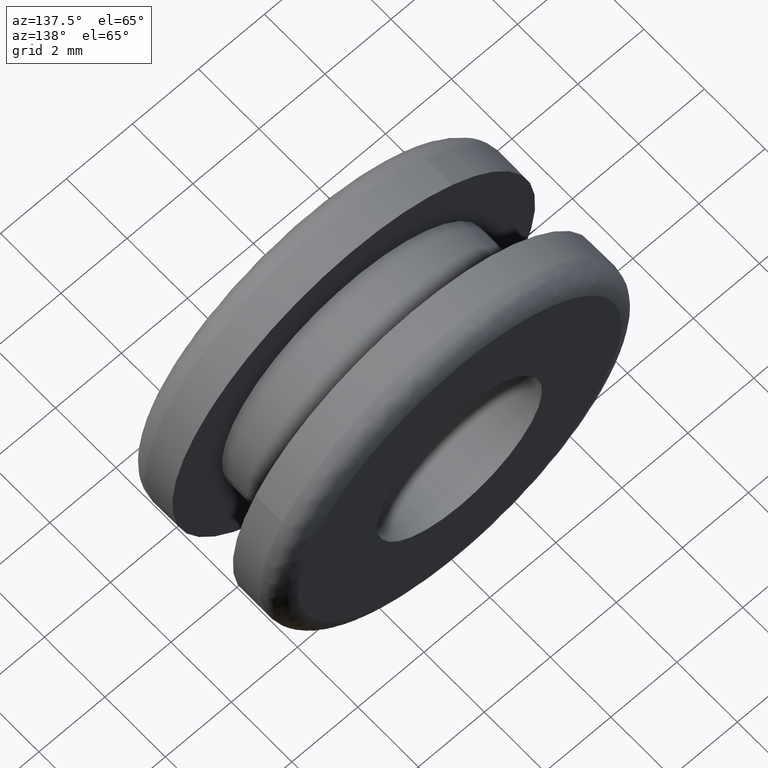
[diagram: clean part render]
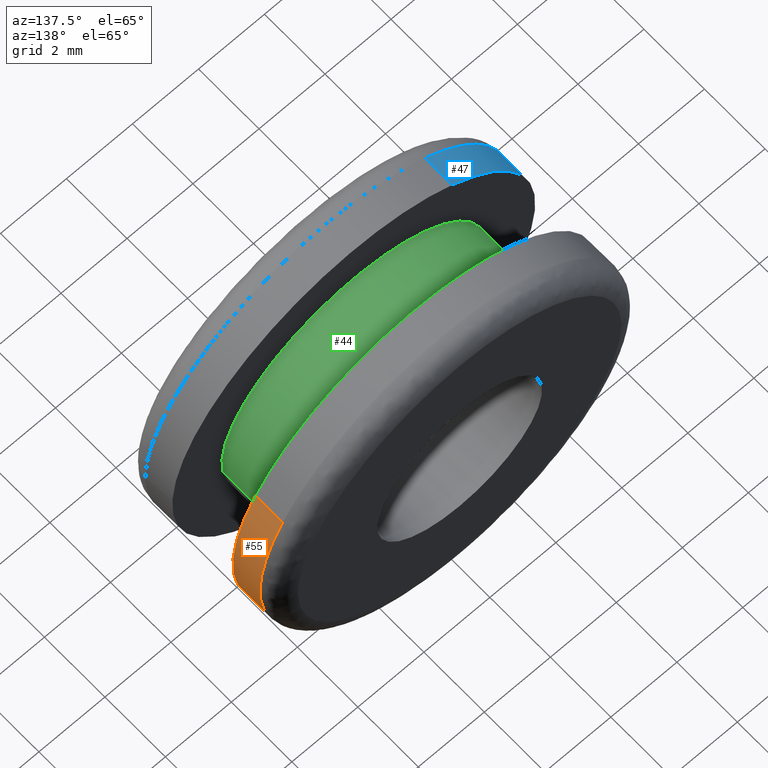
[diagram: same view with three faces highlighted in distinct colors, each labeled with its STEP entity id]
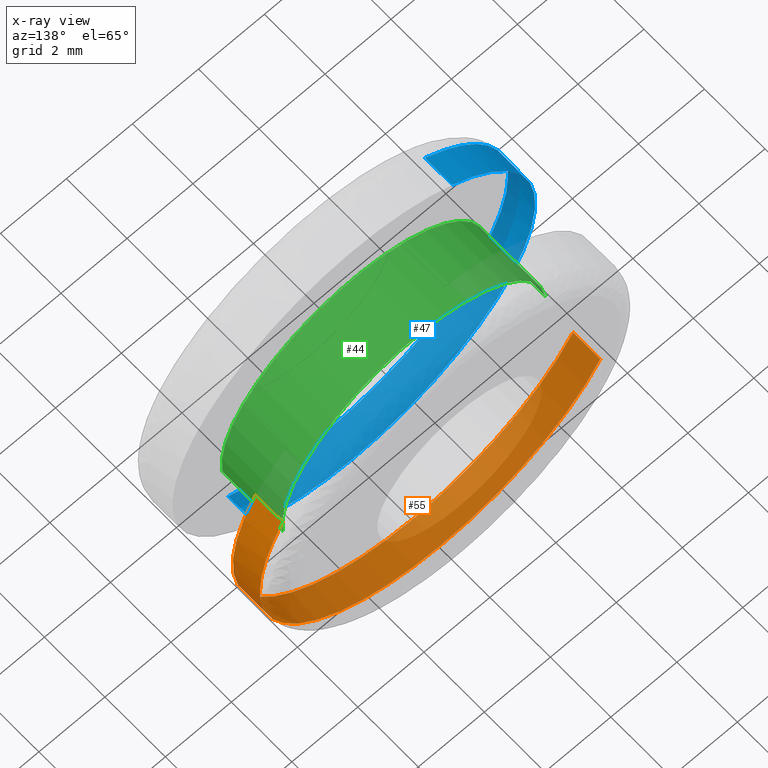
[diagram: x-ray of the same camera — body ghosted, the three highlighted faces saturated]
A machine part, auxiliary view with three faces highlighted in distinct colors.
The next image is the same camera in x-ray (body ghosted, the three faces saturated) — at least one of them is partly hidden behind the body in this view.
Their STEP definitions:

[orange] entity #55 — the highlighted cylindrical surface (partial cylindrical patch) has radius 5.5 mm, axis along (0, 1, -0).
#55=ADVANCED_FACE('',(#211),#210,.T.);
#210=CYLINDRICAL_SURFACE('',#386,5.50000000000E+000);
#211=FACE_OUTER_BOUND('',#387,.T.);
#383=CARTESIAN_POINT('',(2.34197548228E-016,4.42250000003E+000,-1.96302473806E-015));
#384=DIRECTION('',(4.95361328777E-016,1.00000000000E+000,-3.94829318327E-016));
#385=DIRECTION('',(-8.74946427443E-001,2.42230478100E-016,-4.84219732254E-001));
#386=AXIS2_PLACEMENT_3D('',#383,#384,#385);
#387=EDGE_LOOP('',(#482,#483,#484,#485,#486,#487,#488,#489));
#482=ORIENTED_EDGE('',*,*,#496,.F.);
#483=ORIENTED_EDGE('',*,*,#498,.F.);
#484=ORIENTED_EDGE('',*,*,#539,.T.);
#485=ORIENTED_EDGE('',*,*,#528,.T.);
#486=ORIENTED_EDGE('',*,*,#527,.T.);
#487=ORIENTED_EDGE('',*,*,#526,.T.);
#488=ORIENTED_EDGE('',*,*,#534,.T.);
#489=ORIENTED_EDGE('',*,*,#540,.F.);
#496=EDGE_CURVE('',#583,#584,#585,.T.);
#498=EDGE_CURVE('',#591,#583,#598,.T.);
#526=EDGE_CURVE('',#789,#790,#791,.T.);
#527=EDGE_CURVE('',#797,#789,#798,.T.);
#528=EDGE_CURVE('',#804,#797,#805,.T.);
#534=EDGE_CURVE('',#790,#837,#844,.T.);
#539=EDGE_CURVE('',#591,#804,#874,.T.);
#540=EDGE_CURVE('',#584,#837,#880,.T.);
#583=VERTEX_POINT('',#916);
#584=VERTEX_POINT('',#917);
#585=CIRCLE('',#921,5.50000036439E+000);
#591=VERTEX_POINT('',#922);
#598=CIRCLE('',#930,5.50000036439E+000);
#789=VERTEX_POINT('',#1054);
#790=VERTEX_POINT('',#1055);
#791=CIRCLE('',#1059,5.50000000000E+000);
#797=VERTEX_POINT('',#1060);
#798=CIRCLE('',#1064,5.50000000000E+000);
#804=VERTEX_POINT('',#1065);
#805=CIRCLE('',#1069,5.50000000000E+000);
#837=VERTEX_POINT('',#1087);
#844=CIRCLE('',#1095,5.50000000000E+000);
#874=(BOUNDED_CURVE() B_SPLINE_CURVE(1,(#1110,#1111),.UNSPECIFIED.,.F.,.F.) B_SPLINE_CURVE_WITH_KNOTS((2,2),(8.33332935974E-002,9.16666633252E-001),.UNSPECIFIED.) CURVE() GEOMETRIC_REPRESENTATION_ITEM() RATIONAL_B_SPLINE_CURVE((1.00000000000E+000,1.00000000000E+000)) REPRESENTATION_ITEM('') );
#880=(BOUNDED_CURVE() B_SPLINE_CURVE(1,(#1112,#1113),.UNSPECIFIED.,.F.,.F.) B_SPLINE_CURVE_WITH_KNOTS((2,2),(8.33333333333E-002,9.16666666243E-001),.UNSPECIFIED.) CURVE() GEOMETRIC_REPRESENTATION_ITEM() RATIONAL_B_SPLINE_CURVE((7.50000000000E-001,7.50000000000E-001)) REPRESENTATION_ITEM('') );
#916=CARTESIAN_POINT('',(-1.83399222221E-014,3.50000000000E+000,-5.50000072878E+000));
#917=CARTESIAN_POINT('',(4.81204951823E+000,3.50000000000E+000,2.66349072930E+000));
#918=CARTESIAN_POINT('',(1.41703984102E-007,3.50000000000E+000,-3.64391183005E-007));
#919=DIRECTION('',(5.70942712249E-017,-1.00000000000E+000,-5.65204409983E-016));
#920=DIRECTION('',(-2.57643618069E-008,5.65204408512E-016,-1.00000000000E+000));
#921=AXIS2_PLACEMENT_3D('',#918,#919,#920);
#922=CARTESIAN_POINT('',(-4.81220174616E+000,3.50000000000E+000,-2.66321590181E+000));
#927=CARTESIAN_POINT('',(1.41703984102E-007,3.50000000000E+000,-3.64391183005E-007));
#928=DIRECTION('',(5.70942712249E-017,-1.00000000000E+000,-5.65204409983E-016));
#929=DIRECTION('',(-2.57643618069E-008,5.65204408512E-016,-1.00000000000E+000));
#930=AXIS2_PLACEMENT_3D('',#927,#928,#929);
#1054=CARTESIAN_POINT('',(5.48661120612E+000,4.40000000003E+000,-3.83532883667E-001));
#1055=CARTESIAN_POINT('',(5.50000000000E+000,4.39999999997E+000,1.11497917188E-006));
#1056=CARTESIAN_POINT('',(7.63833440942E-013,4.40000000035E+000,-6.66133814775E-016));
#1057=DIRECTION('',(-6.81070261550E-011,-1.00000000000E+000,-1.38804812342E-010));
#1058=DIRECTION('',(-9.97565673840E-001,5.82619205406E-011,6.97332515759E-002));
#1059=AXIS2_PLACEMENT_3D('',#1056,#1057,#1058);
#1060=CARTESIAN_POINT('',(0.00000000000E+000,4.40000000000E+000,-5.50000000000E+000));
#1061=CARTESIAN_POINT('',(-1.21236354289E-012,4.40000000003E+000,1.29984911723E-012));
#1062=DIRECTION('',(1.14188542450E-016,-1.00000000000E+000,5.37412538713E-012));
#1063=DIRECTION('',(-2.20429735071E-013,5.37412538713E-012,1.00000000000E+000));
#1064=AXIS2_PLACEMENT_3D('',#1061,#1062,#1063);
#1065=CARTESIAN_POINT('',(-4.81220534752E+000,4.39999999786E+000,-2.66320853357E+000));
#1066=CARTESIAN_POINT('',(-5.77315972805E-015,4.40000000005E+000,-7.54951656745E-015));
#1067=DIRECTION('',(1.34141591574E-011,-1.00000000000E+000,7.95582968782E-010));
#1068=DIRECTION('',(9.99921044204E-001,3.41577271518E-012,-1.25660398839E-002));
#1069=AXIS2_PLACEMENT_3D('',#1066,#1067,#1068);
#1087=CARTESIAN_POINT('',(4.81220584344E+000,4.40000000000E+000,2.66320763749E+000));
#1092=CARTESIAN_POINT('',(7.63833440942E-013,4.40000000035E+000,-6.66133814775E-016));
#1093=DIRECTION('',(-6.81070261550E-011,-1.00000000000E+000,-1.38804812342E-010));
#1094=DIRECTION('',(-9.97565673840E-001,5.82619205406E-011,6.97332515759E-002));
#1095=AXIS2_PLACEMENT_3D('',#1092,#1093,#1094);
#1110=CARTESIAN_POINT('',(-4.81220535094E+000,3.49999995709E+000,-2.66320852740E+000));
#1111=CARTESIAN_POINT('',(-4.81220535094E+000,4.39999996394E+000,-2.66320852740E+000));
#1112=CARTESIAN_POINT('',(4.81220535094E+000,3.50000000000E+000,2.66320852740E+000));
#1113=CARTESIAN_POINT('',(4.81220535094E+000,4.39999999957E+000,2.66320852740E+000));

[blue] entity #47 — the highlighted cylindrical surface (partial cylindrical patch) has radius 5.5 mm, axis along (-0, 1, 0).
#47=ADVANCED_FACE('',(#131),#130,.T.);
#130=CYLINDRICAL_SURFACE('',#262,5.50000000000E+000);
#131=FACE_OUTER_BOUND('',#263,.T.);
#259=CARTESIAN_POINT('',(-1.70478042093E-016,1.52250000000E+000,1.78338816164E-015));
#260=DIRECTION('',(-1.25757397591E-016,1.00000000000E+000,1.48722527436E-017));
#261=DIRECTION('',(-5.42728861529E-001,-8.07434927000E-017,8.39907960948E-001));
#262=AXIS2_PLACEMENT_3D('',#259,#260,#261);
#263=EDGE_LOOP('',(#429,#430,#431,#432,#433,#434,#435,#436));
#429=ORIENTED_EDGE('',*,*,#522,.F.);
#430=ORIENTED_EDGE('',*,*,#523,.F.);
#431=ORIENTED_EDGE('',*,*,#524,.F.);
#432=ORIENTED_EDGE('',*,*,#525,.F.);
#433=ORIENTED_EDGE('',*,*,#516,.T.);
#434=ORIENTED_EDGE('',*,*,#490,.T.);
#435=ORIENTED_EDGE('',*,*,#492,.T.);
#436=ORIENTED_EDGE('',*,*,#521,.F.);
#490=EDGE_CURVE('',#541,#542,#543,.T.);
#492=EDGE_CURVE('',#542,#549,#556,.T.);
#516=EDGE_CURVE('',#721,#541,#722,.T.);
#521=EDGE_CURVE('',#749,#549,#756,.T.);
#522=EDGE_CURVE('',#762,#749,#763,.T.);
#523=EDGE_CURVE('',#769,#762,#770,.T.);
#524=EDGE_CURVE('',#776,#769,#777,.T.);
#525=EDGE_CURVE('',#721,#776,#783,.T.);
#541=VERTEX_POINT('',#886);
#542=VERTEX_POINT('',#887);
#543=CIRCLE('',#891,5.50000000000E+000);
#549=VERTEX_POINT('',#892);
#556=CIRCLE('',#900,5.50000000000E+000);
#721=VERTEX_POINT('',#1010);
#722=(BOUNDED_CURVE() B_SPLINE_CURVE(1,(#1011,#1012),.UNSPECIFIED.,.F.,.F.) B_SPLINE_CURVE_WITH_KNOTS((2,2),(8.33333730703E-002,9.16666640476E-001),.UNSPECIFIED.) CURVE() GEOMETRIC_REPRESENTATION_ITEM() RATIONAL_B_SPLINE_CURVE((1.00000000000E+000,1.00000000000E+000)) REPRESENTATION_ITEM('') );
#749=VERTEX_POINT('',#1028);
#756=(BOUNDED_CURVE() B_SPLINE_CURVE(1,(#1033,#1034),.UNSPECIFIED.,.F.,.F.) B_SPLINE_CURVE_WITH_KNOTS((2,2),(8.33333333619E-002,9.16666666667E-001),.UNSPECIFIED.) CURVE() GEOMETRIC_REPRESENTATION_ITEM() RATIONAL_B_SPLINE_CURVE((7.50000000000E-001,7.50000000000E-001)) REPRESENTATION_ITEM('') );
#762=VERTEX_POINT('',#1035);
#763=CIRCLE('',#1039,5.49999910434E+000);
#769=VERTEX_POINT('',#1040);
#770=CIRCLE('',#1044,5.50000064834E+000);
#776=VERTEX_POINT('',#1045);
#777=CIRCLE('',#1049,5.50000064834E+000);
#783=CIRCLE('',#1053,5.50000000000E+000);
#886=CARTESIAN_POINT('',(-2.98500873763E+000,1.50000000000E+000,4.61949378572E+000));
#887=CARTESIAN_POINT('',(-3.10862446895E-015,1.50000000000E+000,-5.50000000000E+000));
#888=CARTESIAN_POINT('',(4.77395900589E-014,1.50000000000E+000,6.23945339839E-014));
#889=DIRECTION('',(2.95784048121E-016,-1.00000000000E+000,2.39195515702E-016));
#890=DIRECTION('',(-8.77076189454E-015,-2.39195515702E-016,-1.00000000000E+000));
#891=AXIS2_PLACEMENT_3D('',#888,#889,#890);
#892=CARTESIAN_POINT('',(2.98639957453E+000,1.50000000000E+000,-4.61859476262E+000));
#897=CARTESIAN_POINT('',(4.77395900589E-014,1.50000000000E+000,6.23945339839E-014));
#898=DIRECTION('',(2.95784048121E-016,-1.00000000000E+000,2.39195515702E-016));
#899=DIRECTION('',(-8.77076189454E-015,-2.39195515702E-016,-1.00000000000E+000));
#900=AXIS2_PLACEMENT_3D('',#897,#898,#899);
#1010=CARTESIAN_POINT('',(-2.98500873914E+000,5.99999999998E-001,4.61949378474E+000));
#1011=CARTESIAN_POINT('',(-2.98500873841E+000,6.00000042905E-001,4.61949378521E+000));
#1012=CARTESIAN_POINT('',(-2.98500873841E+000,1.49999997171E+000,4.61949378521E+000));
#1028=CARTESIAN_POINT('',(2.98510796961E+000,5.99999999998E-001,-4.61942966283E+000));
#1033=CARTESIAN_POINT('',(2.98500873841E+000,6.00000000020E-001,-4.61949378521E+000));
#1034=CARTESIAN_POINT('',(2.98500873841E+000,1.50000000000E+000,-4.61949378521E+000));
#1035=CARTESIAN_POINT('',(-4.24393564637E+000,6.00000000000E-001,-3.49842968051E+000));
#1036=CARTESIAN_POINT('',(8.89555373362E-007,5.99999999989E-001,-4.91571322314E-007));
#1037=DIRECTION('',(8.93741585390E-015,-1.00000000000E+000,-1.97208037913E-012));
#1038=DIRECTION('',(-5.42728635713E-001,-1.66121688934E-012,8.39908106865E-001));
#1039=AXIS2_PLACEMENT_3D('',#1036,#1037,#1038);
#1040=CARTESIAN_POINT('',(-5.49999998354E+000,6.00000000011E-001,-3.31950941483E-011));
#1041=CARTESIAN_POINT('',(6.64798021077E-007,5.99999999921E-001,2.12812069078E-007));
#1042=DIRECTION('',(-1.62315183284E-011,-1.00000000000E+000,-5.48873869857E-011));
#1043=DIRECTION('',(9.97565677120E-001,-1.23645321818E-011,-6.97332046626E-002));
#1044=AXIS2_PLACEMENT_3D('',#1041,#1042,#1043);
#1045=CARTESIAN_POINT('',(-5.48661120612E+000,5.99999999989E-001,3.83532883667E-001));
#1046=CARTESIAN_POINT('',(6.64798021077E-007,5.99999999921E-001,2.12812069078E-007));
#1047=DIRECTION('',(-1.62315183284E-011,-1.00000000000E+000,-5.48873869857E-011));
#1048=DIRECTION('',(9.97565677120E-001,-1.23645321818E-011,-6.97332046626E-002));
#1049=AXIS2_PLACEMENT_3D('',#1046,#1047,#1048);
#1050=CARTESIAN_POINT('',(1.19682042055E-012,5.99999999988E-001,-1.28119737042E-012));
#1051=DIRECTION('',(3.59205878744E-028,-1.00000000000E+000,2.09715073590E-012));
#1052=DIRECTION('',(2.17603712826E-013,-2.09715073590E-012,-1.00000000000E+000));
#1053=AXIS2_PLACEMENT_3D('',#1050,#1051,#1052);

[green] entity #44 — the highlighted cylindrical surface (partial cylindrical patch) has radius 4 mm, axis along (-0, 1, -0).
#44=ADVANCED_FACE('',(#101),#100,.T.);
#100=CYLINDRICAL_SURFACE('',#247,4.00000000000E+000);
#101=FACE_OUTER_BOUND('',#248,.T.);
#244=CARTESIAN_POINT('',(-6.11467403465E-016,3.55000000000E+000,-7.18594435448E-015));
#245=DIRECTION('',(-8.09860076763E-016,1.00000000000E+000,-6.81326713039E-015));
#246=DIRECTION('',(-9.93009526364E-001,-1.24245592572E-029,1.18034234657E-001));
#247=AXIS2_PLACEMENT_3D('',#244,#245,#246);
#248=EDGE_LOOP('',(#412,#413,#414,#415));
#412=ORIENTED_EDGE('',*,*,#500,.T.);
#413=ORIENTED_EDGE('',*,*,#514,.F.);
#414=ORIENTED_EDGE('',*,*,#494,.F.);
#415=ORIENTED_EDGE('',*,*,#515,.T.);
#494=EDGE_CURVE('',#563,#570,#571,.T.);
#500=EDGE_CURVE('',#612,#604,#613,.T.);
#514=EDGE_CURVE('',#570,#604,#709,.T.);
#515=EDGE_CURVE('',#563,#612,#715,.T.);
#563=VERTEX_POINT('',#902);
#570=VERTEX_POINT('',#907);
#571=CIRCLE('',#911,4.00000000000E+000);
#604=VERTEX_POINT('',#931);
#612=VERTEX_POINT('',#937);
#613=CIRCLE('',#941,4.00000000000E+000);
#709=(BOUNDED_CURVE() B_SPLINE_CURVE(1,(#1006,#1007),.UNSPECIFIED.,.F.,.F.) B_SPLINE_CURVE_WITH_KNOTS((2,2),(8.33333134656E-002,9.16666653270E-001),.UNSPECIFIED.) CURVE() GEOMETRIC_REPRESENTATION_ITEM() RATIONAL_B_SPLINE_CURVE((1.00000000000E+000,1.00000000000E+000)) REPRESENTATION_ITEM('') );
#715=(BOUNDED_CURVE() B_SPLINE_CURVE(1,(#1008,#1009),.UNSPECIFIED.,.F.,.F.) B_SPLINE_CURVE_WITH_KNOTS((2,2),(8.33333333335E-002,9.16666666667E-001),.UNSPECIFIED.) CURVE() GEOMETRIC_REPRESENTATION_ITEM() RATIONAL_B_SPLINE_CURVE((7.50000000000E-001,7.50000000000E-001)) REPRESENTATION_ITEM('') );
#902=CARTESIAN_POINT('',(3.97195644383E+000,1.50000000000E+000,-4.72823443060E-001));
#907=CARTESIAN_POINT('',(-3.97203820494E+000,1.50000000000E+000,4.72136101655E-001));
#908=CARTESIAN_POINT('',(1.05604414102E-012,1.50000000000E+000,2.32214247831E-012));
#909=DIRECTION('',(1.82452857553E-014,-1.00000000000E+000,1.21516374572E-013));
#910=DIRECTION('',(-2.63650212773E-013,-1.21516374572E-013,-1.00000000000E+000));
#911=AXIS2_PLACEMENT_3D('',#908,#909,#910);
#931=CARTESIAN_POINT('',(-3.97203820494E+000,3.50000000000E+000,4.72136101655E-001));
#937=CARTESIAN_POINT('',(3.97195644383E+000,3.50000000000E+000,-4.72823443060E-001));
#938=CARTESIAN_POINT('',(1.02895469922E-012,3.50000000000E+000,2.26307861340E-012));
#939=DIRECTION('',(-1.07402907431E-016,-1.00000000000E+000,2.85882782048E-015));
#940=DIRECTION('',(-2.57210919230E-013,-2.85882782048E-015,-1.00000000000E+000));
#941=AXIS2_PLACEMENT_3D('',#938,#939,#940);
#1006=CARTESIAN_POINT('',(-3.97203810545E+000,1.49999995232E+000,4.72136938627E-001));
#1007=CARTESIAN_POINT('',(-3.97203810545E+000,3.49999996785E+000,4.72136938627E-001));
#1008=CARTESIAN_POINT('',(3.97203810545E+000,1.50000000000E+000,-4.72136938627E-001));
#1009=CARTESIAN_POINT('',(3.97203810545E+000,3.50000000000E+000,-4.72136938627E-001));